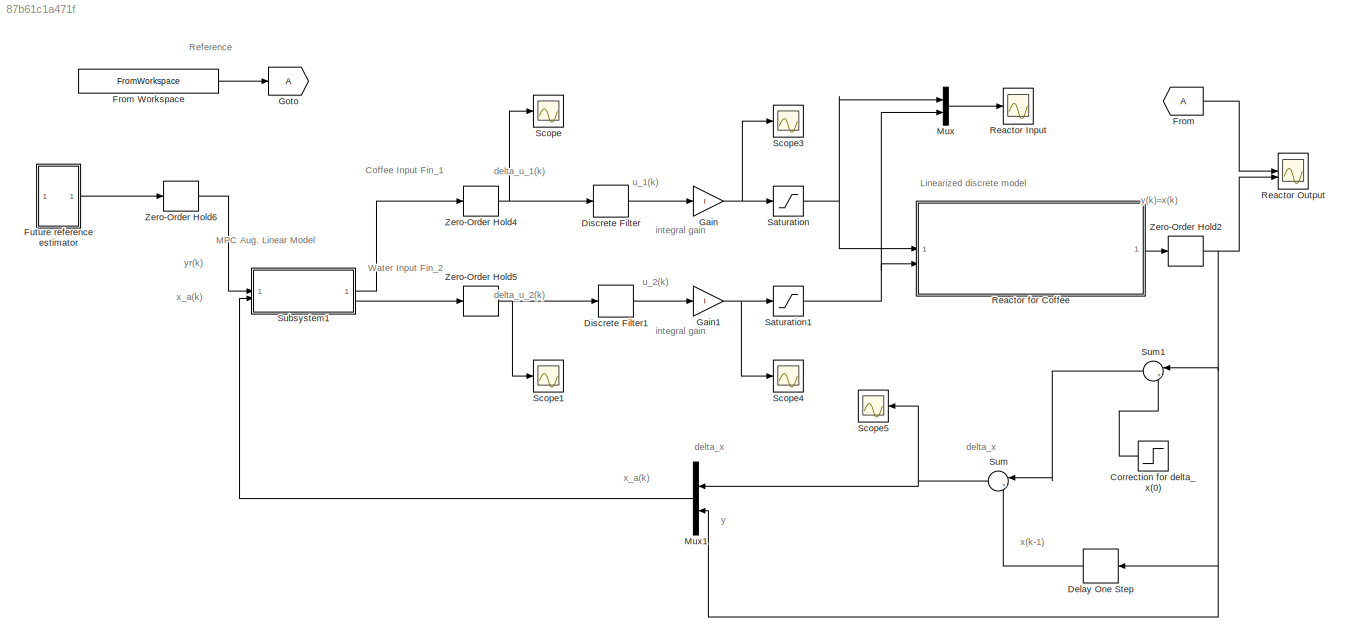
MODEL slx_87b61c1a471f
KIND model
CONFIG AbsTol = auto
CONFIG EnableMultiTasking = off
CONFIG FixedStep = simulationParameters.Tint
CONFIG MaxStep = auto
CONFIG MinStep = auto
CONFIG RelTol = 1e-3
CONFIG SampleTimeConstraint = Unconstrained
CONFIG SolverName = ode4
CONFIG StartTime = 0.0
CONFIG StopTime = simulationParameters.Tsim
BLOCK [Step] Correction for delta_x(0)
  After = 0
  Before = simulationParameters.Reactor_parameters.x_0
  SampleTime = Ts
  Time = Ts
BLOCK [Delay] Delay One Step
  DelayLength = 1
  InputPortMap = u0
BLOCK [DiscreteFilter] Discrete Filter
  Denominator = [1 -1]
  InputPortMap = u0
BLOCK [DiscreteFilter] Discrete Filter1
  Denominator = [1 -1]
  InputPortMap = u0
BLOCK [From] From
BLOCK [FromWorkspace] From Workspace
  OutputAfterFinalValue = Holding final value
  VariableName = simulationParameters.y_target
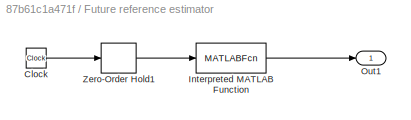
BLOCK [SubSystem] Future reference estimator
BLOCK [Clock] Future reference estimator/Clock
BLOCK [MATLABFcn] Future reference estimator/Interpreted MATLAB Function
  MATLABFcn = futureRefCalc(u(1),simulationParameters.y_target,PH,Ts)
  OutputDimensions = PH
BLOCK [Outport] Future reference estimator/Out1
BLOCK [ZeroOrderHold] Future reference estimator/Zero-Order Hold1
  SampleTime = Ts
BLOCK [Gain] Gain
  Gain = I
BLOCK [Gain] Gain1
  Gain = I
BLOCK [Goto] Goto
BLOCK [Mux] Mux
  DisplayOption = bar
  Inputs = 2
BLOCK [Mux] Mux1
  DisplayOption = bar
  Inputs = 2
BLOCK [Scope] Reactor Input
  Floating = off
  NumInputPorts = 1
  ScopeSpecificationString = Simulink.scopes.TimeScopeBlockCfg('CurrentConfiguration', extmgr.ConfigurationSet(extmgr.Configuration('Core','General UI',true),extmgr.Configuration('Core','Source UI',true),extmgr.Configuration('Sources','WiredSimulink',true,'DataLogging',true,'DataLoggingVariableName','reactorInput','DataLoggingSaveFormat','StructureWithTime'),extmgr.Configuration('Visuals','Time Domain',true,'SerializedDisplay...<+1594ch>
BLOCK [Scope] Reactor Output
  Floating = off
  NumInputPorts = 2
  ScopeSpecificationString = Simulink.scopes.TimeScopeBlockCfg('CurrentConfiguration', extmgr.ConfigurationSet(extmgr.Configuration('Core','General UI',true),extmgr.Configuration('Core','Source UI',true),extmgr.Configuration('Sources','WiredSimulink',true,'DataLogging',true,'DataLoggingVariableName','reactorOutput','DataLoggingSaveFormat','StructureWithTime'),extmgr.Configuration('Visuals','Time Domain',true,'SerializedDispla...<+1627ch>
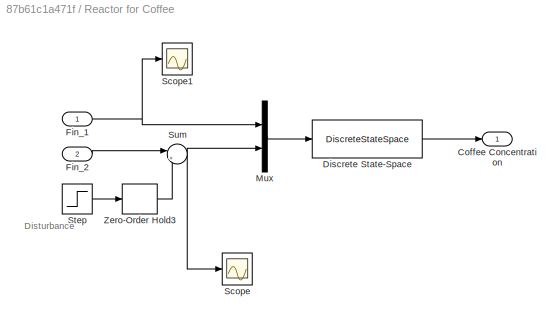
BLOCK [SubSystem] Reactor for Coffee
BLOCK [Outport] Reactor for Coffee/Coffee Concentration
BLOCK [DiscreteStateSpace] Reactor for Coffee/Discrete State-Space
  A = sys_d.A
  B = sys_d.B
  C = sys_d.C
  D = sys_d.D
  InitialCondition = simulationParameters.Reactor_parameters.x_0
  SampleTime = -1
BLOCK [Inport] Reactor for Coffee/Fin_1
BLOCK [Inport] Reactor for Coffee/Fin_2
  Port = 2
BLOCK [Mux] Reactor for Coffee/Mux
  DisplayOption = bar
  Inputs = 2
BLOCK [Scope] Reactor for Coffee/Scope
  Floating = off
  NumInputPorts = 1
  ScopeSpecificationString = Simulink.scopes.TimeScopeBlockCfg('CurrentConfiguration', extmgr.ConfigurationSet(extmgr.Configuration('Core','General UI',true),extmgr.Configuration('Core','Source UI',true),extmgr.Configuration('Sources','WiredSimulink',true,'DataLoggingVariableName','ScopeData1'),extmgr.Configuration('Visuals','Time Domain',true,'SerializedDisplays',{struct('MinYLimReal','-7.65321','MaxYLimReal','68.87887','YLa...<+1455ch>
BLOCK [Scope] Reactor for Coffee/Scope1
  Floating = off
  NumInputPorts = 1
  ScopeSpecificationString = Simulink.scopes.TimeScopeBlockCfg('CurrentConfiguration', extmgr.ConfigurationSet(extmgr.Configuration('Core','General UI',true),extmgr.Configuration('Core','Source UI',true),extmgr.Configuration('Sources','WiredSimulink',true,'DataLoggingVariableName','ScopeData2'),extmgr.Configuration('Visuals','Time Domain',true,'SerializedDisplays',{struct('MinYLimReal','-8.25','MaxYLimReal','74.25','YLabelRea...<+1439ch>
BLOCK [Step] Reactor for Coffee/Step
  After = simulationParameters.Reactor_parameters.Adist
  SampleTime = 0
  Time = simulationParameters.Reactor_parameters.Tdist
BLOCK [Sum] Reactor for Coffee/Sum
  Inputs = |++
BLOCK [ZeroOrderHold] Reactor for Coffee/Zero-Order Hold3
  SampleTime = simulationParameters.Ts
BLOCK [Saturate] Saturation
  LowerLimit = simulationParameters.Fin1_min
  UpperLimit = simulationParameters.Fin1_max
BLOCK [Saturate] Saturation1
  LowerLimit = simulationParameters.Fin2_min
  UpperLimit = simulationParameters.Fin2_max
BLOCK [Scope] Scope
  Floating = off
  NumInputPorts = 1
  ScopeSpecificationString = Simulink.scopes.TimeScopeBlockCfg('CurrentConfiguration', extmgr.ConfigurationSet(extmgr.Configuration('Core','General UI',true),extmgr.Configuration('Core','Source UI',true),extmgr.Configuration('Sources','WiredSimulink',true,'DataLoggingVariableName','ScopeData3'),extmgr.Configuration('Visuals','Time Domain',true,'SerializedDisplays',{struct('MinYLimReal','-2.83462','MaxYLimReal','2.29219','YLab...<+1512ch>
BLOCK [Scope] Scope1
  Floating = off
  NumInputPorts = 1
  ScopeSpecificationString = Simulink.scopes.TimeScopeBlockCfg('CurrentConfiguration', extmgr.ConfigurationSet(extmgr.Configuration('Core','General UI',true),extmgr.Configuration('Core','Source UI',true),extmgr.Configuration('Sources','WiredSimulink',true,'DataLoggingVariableName','ScopeData4'),extmgr.Configuration('Visuals','Time Domain',true,'SerializedDisplays',{struct('MinYLimReal','-20.62448','MaxYLimReal','17.25722','YL...<+1512ch>
BLOCK [Scope] Scope3
  Floating = off
  NumInputPorts = 1
  ScopeSpecificationString = Simulink.scopes.TimeScopeBlockCfg('CurrentConfiguration', extmgr.ConfigurationSet(extmgr.Configuration('Core','General UI',true),extmgr.Configuration('Core','Source UI',true),extmgr.Configuration('Sources','WiredSimulink',true,'DataLoggingVariableName','ScopeData1'),extmgr.Configuration('Visuals','Time Domain',true,'SerializedDisplays',{struct('MinYLimReal','-29.3584','MaxYLimReal','36.42817','YLa...<+1504ch>
BLOCK [Scope] Scope4
  Floating = off
  NumInputPorts = 1
  ScopeSpecificationString = Simulink.scopes.TimeScopeBlockCfg('CurrentConfiguration', extmgr.ConfigurationSet(extmgr.Configuration('Core','General UI',true),extmgr.Configuration('Core','Source UI',true),extmgr.Configuration('Sources','WiredSimulink',true,'DataLoggingVariableName','ScopeData2'),extmgr.Configuration('Visuals','Time Domain',true,'SerializedDisplays',{struct('MinYLimReal','-28.59866','MaxYLimReal','28.22389','YL...<+1507ch>
BLOCK [Scope] Scope5
  Floating = off
  NumInputPorts = 1
  ScopeSpecificationString = Simulink.scopes.TimeScopeBlockCfg('CurrentConfiguration', extmgr.ConfigurationSet(extmgr.Configuration('Core','General UI',true),extmgr.Configuration('Core','Source UI',true),extmgr.Configuration('Sources','WiredSimulink',true,'DataLoggingVariableName','ScopeData1'),extmgr.Configuration('Visuals','Time Domain',true,'SerializedDisplays',{struct('MinYLimReal','-6.37423','MaxYLimReal','25.96904','YLa...<+1503ch>
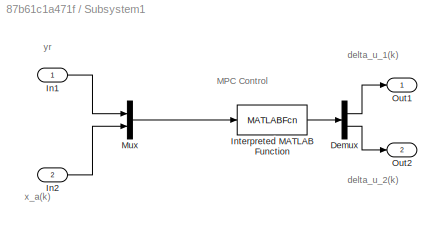
BLOCK [SubSystem] Subsystem1
BLOCK [Demux] Subsystem1/Demux
  Outputs = 2
BLOCK [Inport] Subsystem1/In1
BLOCK [Inport] Subsystem1/In2
  Port = 2
BLOCK [MATLABFcn] Subsystem1/Interpreted MATLAB Function
  MATLABFcn = MPC_control_4_1(u(1:PH),u(PH+1:end),condensedMat,PH)
  OutputDimensions = 2
BLOCK [Mux] Subsystem1/Mux
  DisplayOption = bar
  Inputs = 2
BLOCK [Outport] Subsystem1/Out1
BLOCK [Outport] Subsystem1/Out2
  Port = 2
BLOCK [Sum] Sum
  Inputs = |+-
BLOCK [Sum] Sum1
  Inputs = |+-
BLOCK [ZeroOrderHold] Zero-Order Hold2
  SampleTime = simulationParameters.Ts
BLOCK [ZeroOrderHold] Zero-Order Hold4
  SampleTime = simulationParameters.Ts
BLOCK [ZeroOrderHold] Zero-Order Hold5
  SampleTime = simulationParameters.Ts
BLOCK [ZeroOrderHold] Zero-Order Hold6
  SampleTime = simulationParameters.Ts
ANNOTATION (root): MPC Aug. Linear Model
ANNOTATION (root): y(k)=x(k)
ANNOTATION (root): Coffee Input Fin_1
ANNOTATION (root): Water Input Fin_2
ANNOTATION (root): Reference
ANNOTATION (root): Linearized discrete model
ANNOTATION (root): delta_u_1(k)
ANNOTATION (root): delta_u_2(k)
ANNOTATION (root): delta_x
ANNOTATION (root): integral gain
ANNOTATION (root): u_1(k)
ANNOTATION (root): u_2(k)
ANNOTATION (root): x(k-1)
ANNOTATION (root): x_a(k)
ANNOTATION (root): y
ANNOTATION (root): yr(k)
ANNOTATION Reactor for Coffee: Disturbance
ANNOTATION Subsystem1: MPC Control
ANNOTATION Subsystem1: delta_u_1(k)
ANNOTATION Subsystem1: delta_u_2(k)
ANNOTATION Subsystem1: x_a(k)
ANNOTATION Subsystem1: yr
LINE Correction for delta_x(0):1 -> Sum1:2
LINE Delay One Step:1 -> Sum:2
LINE Discrete Filter1:1 -> Gain1:1
LINE Discrete Filter:1 -> Gain:1
LINE From Workspace:1 -> Goto:1
LINE From:1 -> Reactor Output:1
LINE Future reference estimator/Clock:1 -> Future reference estimator/Zero-Order Hold1:1
LINE Future reference estimator/Interpreted MATLAB Function:1 -> Future reference estimator/Out1:1
LINE Future reference estimator/Zero-Order Hold1:1 -> Future reference estimator/Interpreted MATLAB Function:1
LINE Future reference estimator:1 -> Zero-Order Hold6:1
NET Gain1:1 -> Saturation1:1, Scope4:1
NET Gain:1 -> Saturation:1, Scope3:1
LINE Mux1:1 -> Subsystem1:2
LINE Mux:1 -> Reactor Input:1
LINE Reactor for Coffee/Discrete State-Space:1 -> Reactor for Coffee/Coffee Concentration:1
NET Reactor for Coffee/Fin_1:1 -> Reactor for Coffee/Mux:1, Reactor for Coffee/Scope1:1
LINE Reactor for Coffee/Fin_2:1 -> Reactor for Coffee/Sum:1
LINE Reactor for Coffee/Mux:1 -> Reactor for Coffee/Discrete State-Space:1
LINE Reactor for Coffee/Step:1 -> Reactor for Coffee/Zero-Order Hold3:1
NET Reactor for Coffee/Sum:1 -> Reactor for Coffee/Mux:2, Reactor for Coffee/Scope:1
LINE Reactor for Coffee/Zero-Order Hold3:1 -> Reactor for Coffee/Sum:2
LINE Reactor for Coffee:1 -> Zero-Order Hold2:1
NET Saturation1:1 -> Mux:2, Reactor for Coffee:2
NET Saturation:1 -> Mux:1, Reactor for Coffee:1
LINE Subsystem1/Demux:1 -> Subsystem1/Out1:1
LINE Subsystem1/Demux:2 -> Subsystem1/Out2:1
LINE Subsystem1/In1:1 -> Subsystem1/Mux:1
LINE Subsystem1/In2:1 -> Subsystem1/Mux:2
LINE Subsystem1/Interpreted MATLAB Function:1 -> Subsystem1/Demux:1
LINE Subsystem1/Mux:1 -> Subsystem1/Interpreted MATLAB Function:1
LINE Subsystem1:1 -> Zero-Order Hold4:1
LINE Subsystem1:2 -> Zero-Order Hold5:1
LINE Sum1:1 -> Sum:1
NET Sum:1 -> Mux1:1, Scope5:1
NET Zero-Order Hold2:1 -> Delay One Step:1, Mux1:2, Reactor Output:2, Sum1:1
NET Zero-Order Hold4:1 -> Discrete Filter:1, Scope:1
NET Zero-Order Hold5:1 -> Discrete Filter1:1, Scope1:1
LINE Zero-Order Hold6:1 -> Subsystem1:1
note: NET lines group one-source signal fan-out (src -> all destinations, sorted); 1:1 wires keep LINE
